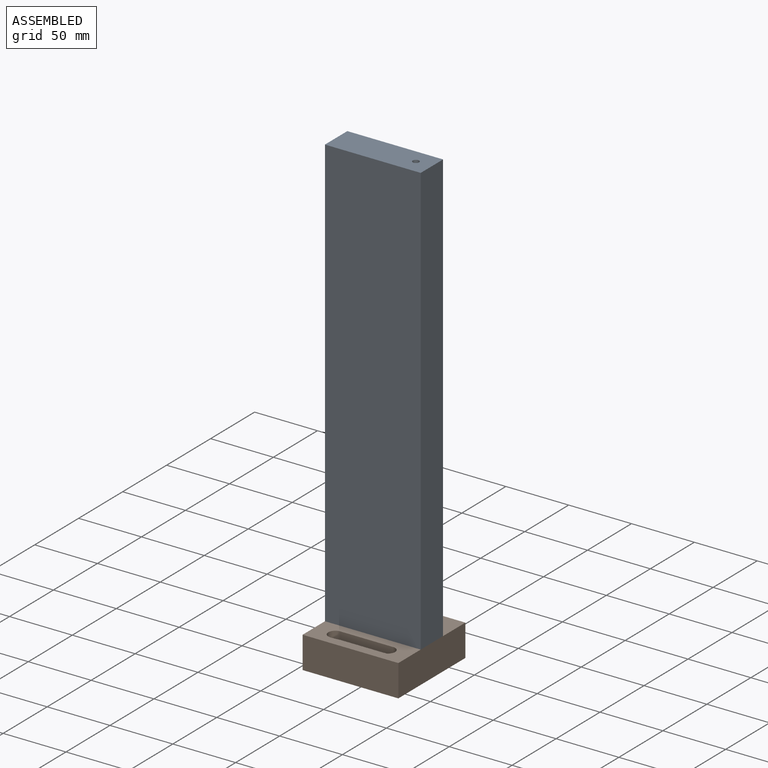
[diagram: assembled view]
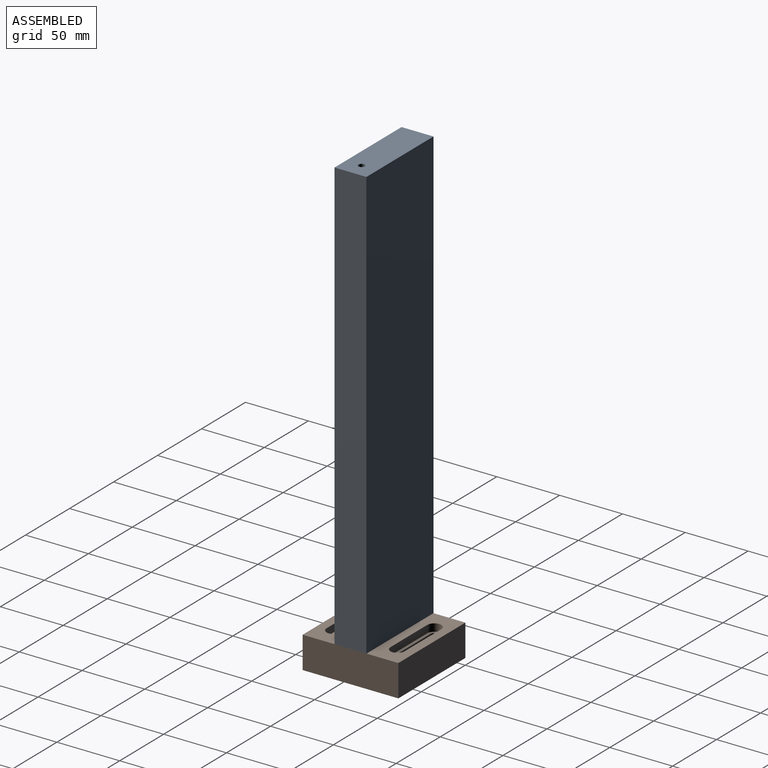
[diagram: assembled view, second angle]
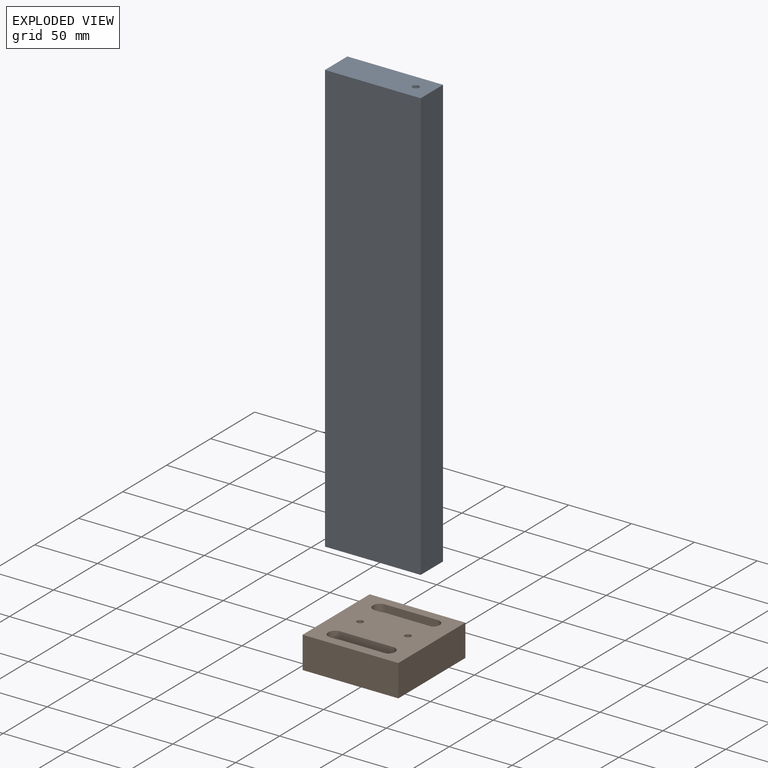
[diagram: exploded view]
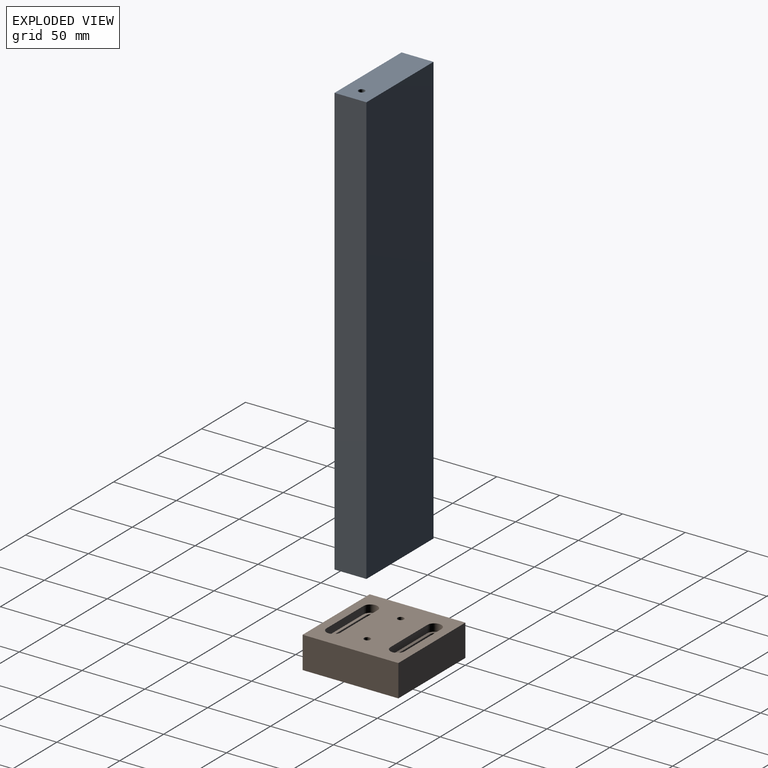
[diagram: exploded view, second angle]
ASSEMBLY  parts=2 mates=3
PART A: 12 faces, bbox 76.2x25.4x342.9 mm
  f0: plane 342.9x25.4mm, normal (-1,0,0), area 8709.7mm2, adj f1,f3,f4,f5
  f1: plane 76.2x25.4mm, normal (0,0,-1), area 1896.2mm2, adj f0,f2,f4,f5,f9,f11
  f2: plane 342.9x25.4mm, normal (1,0,0), area 8709.7mm2, adj f1,f3,f4,f5
  f3: plane 76.2x25.4mm, normal (0,0,1), area 1915.8mm2, adj f0,f2,f4,f5,f7
  f4: plane 342.9x76.2mm, normal (0,-1,0), area 26129mm2, adj f0,f1,f2,f3
  f5: plane 342.9x76.2mm, normal (0,1,0), area 26129mm2, adj f0,f1,f2,f3
  f6: cone r=0mm half-angle=59deg, axis (0,0,1), area 22.9mm2, adj f7
  f7: cylinder r=2.5mm len=79.2mm, axis (0,0,1), area 1244mm2, adj f3,f6
  f8: cone r=0mm half-angle=59deg, axis (0,0,-1), area 22.9mm2, adj f9
  f9: cylinder r=2.5mm len=79.2mm, axis (0,0,-1), area 1244mm2, adj f1,f8
  f10: cone r=0mm half-angle=59deg, axis (0,0,-1), area 22.9mm2, adj f11
  f11: cylinder r=2.5mm len=79.2mm, axis (0,0,-1), area 1244mm2, adj f1,f10
PART B: 36 faces, bbox 76.2x76.2x25.4 mm
  f0: plane 42x2.37mm, normal (0,0,1), area 82.4mm2, adj f24,f25,f27,f33
  f1: plane 42x2.37mm, normal (0,0,1), area 82.4mm2, adj f22,f23,f29,f35
  f2: cylinder r=3.3mm len=19.4mm, axis (0,0,1), area 201.1mm2, adj f12,f22,f34,f35
  f3: cylinder r=3.3mm len=19.4mm, axis (0,0,1), area 201.1mm2, adj f12,f23,f34,f35
  f4: cylinder r=3.3mm len=19.4mm, axis (0,0,1), area 201.1mm2, adj f12,f24,f32,f33
  f5: cylinder r=3.3mm len=19.4mm, axis (0,0,1), area 201.1mm2, adj f12,f25,f32,f33
  f6: plane 76.2x76.2mm, normal (0,0,1), area 4625.4mm2, adj f7,f8,f9,f10,f11,f13,f14,f15
  f7: cylinder r=5.62mm len=11.25mm, axis (0,0,1), area 106mm2, adj f6,f22,f29,f30
  f8: cylinder r=5.62mm len=11.25mm, axis (0,0,1), area 106mm2, adj f6,f23,f29,f30
  f9: cylinder r=5.62mm len=11.25mm, axis (0,0,1), area 106mm2, adj f6,f24,f26,f27
  f10: cylinder r=5.62mm len=11.25mm, axis (0,0,1), area 106mm2, adj f6,f25,f26,f27
  f11: plane 76.2x25.4mm, normal (-1,0,0), area 1935.5mm2, adj f6,f12,f14,f15
  f12: plane 76.2x76.2mm, normal (0,0,-1), area 4986mm2, adj f2,f3,f4,f5,f11,f13,f14,f15
  f13: plane 76.2x25.4mm, normal (1,0,0), area 1935.5mm2, adj f6,f12,f14,f15
  f14: plane 76.2x25.4mm, normal (0,-1,0), area 1935.5mm2, adj f6,f11,f12,f13
  f15: plane 76.2x25.4mm, normal (0,1,0), area 1935.5mm2, adj f6,f11,f12,f13
  f16: cylinder r=2.5mm len=19.4mm, axis (0,0,-1), area 304.7mm2, adj f6,f17
  f17: plane 11.25x11.25mm, normal (0,0,-1), area 79.8mm2, adj f16,f18
  f18: cylinder r=5.62mm len=11.25mm, axis (0,0,-1), area 212.1mm2, adj f12,f17
  f19: cylinder r=2.5mm len=19.4mm, axis (0,0,-1), area 304.7mm2, adj f6,f20
  f20: plane 11.25x11.25mm, normal (0,0,-1), area 79.8mm2, adj f19,f21
  f21: cylinder r=5.62mm len=11.25mm, axis (0,0,-1), area 212.1mm2, adj f12,f20
  f22: plane 11.26x10.23mm, normal (0,0,1), area 47.3mm2, adj f1,f2,f7,f31,f34,f35
  f23: plane 11.26x10.23mm, normal (0,0,1), area 47.5mm2, adj f1,f3,f8,f31,f34,f35
  f24: plane 11.26x10.23mm, normal (0,0,1), area 47.3mm2, adj f0,f4,f9,f28,f32,f33
  f25: plane 11.26x10.23mm, normal (0,0,1), area 47.5mm2, adj f0,f5,f10,f28,f32,f33
  f26: plane 41.91x6mm, normal (0,1,0), area 251.4mm2, adj f6,f9,f10,f28
  f27: plane 41.91x6mm, normal (0,-1,0), area 251.4mm2, adj f0,f6,f9,f10
  f28: plane 42x2.37mm, normal (0,0,1), area 82.4mm2, adj f24,f25,f26,f32
  f29: plane 41.91x6mm, normal (0,-1,0), area 251.4mm2, adj f1,f6,f7,f8
  f30: plane 41.91x6mm, normal (0,1,0), area 251.4mm2, adj f6,f7,f8,f31
  f31: plane 42x2.37mm, normal (0,0,1), area 82.4mm2, adj f22,f23,f30,f34
  f32: plane 41.91x19.41mm, normal (0,1,0), area 813.2mm2, adj f4,f5,f12,f24,f25,f28
  f33: plane 41.91x19.41mm, normal (0,-1,0), area 813.2mm2, adj f0,f4,f5,f12,f24,f25
  f34: plane 41.91x19.41mm, normal (0,1,0), area 813.2mm2, adj f2,f3,f12,f22,f23,f31
  f35: plane 41.91x19.41mm, normal (0,-1,0), area 813.2mm2, adj f1,f2,f3,f12,f22,f23
PLACE A t=(-115.39,-1.05,-214.58)mm
PLACE B t=(-115.39,24.35,-239.98)mm
MATE planar B.f16 <-> A.f1  axis (0,0,1) through (-58.24,-13.75,-214.58)mm
MATE cylindrical B.f16 <-> A.f8  axis (0,0,-1) through (-58.24,-13.75,-233.98)mm
MATE planar A.f0 <-> B.f11  axis (-1,0,0) through (-115.39,-13.75,-43.13)mm
